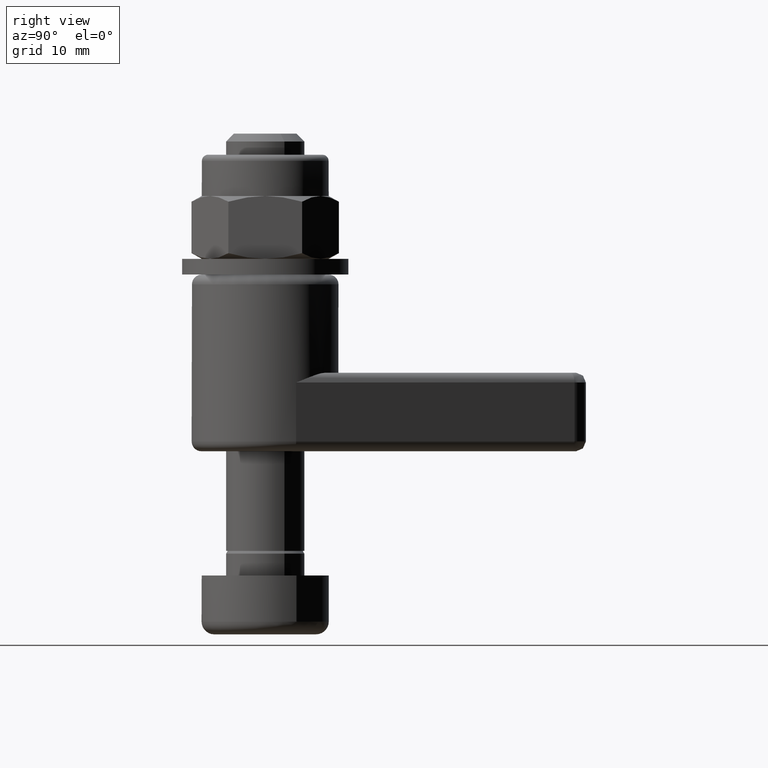
[diagram: clean part render]
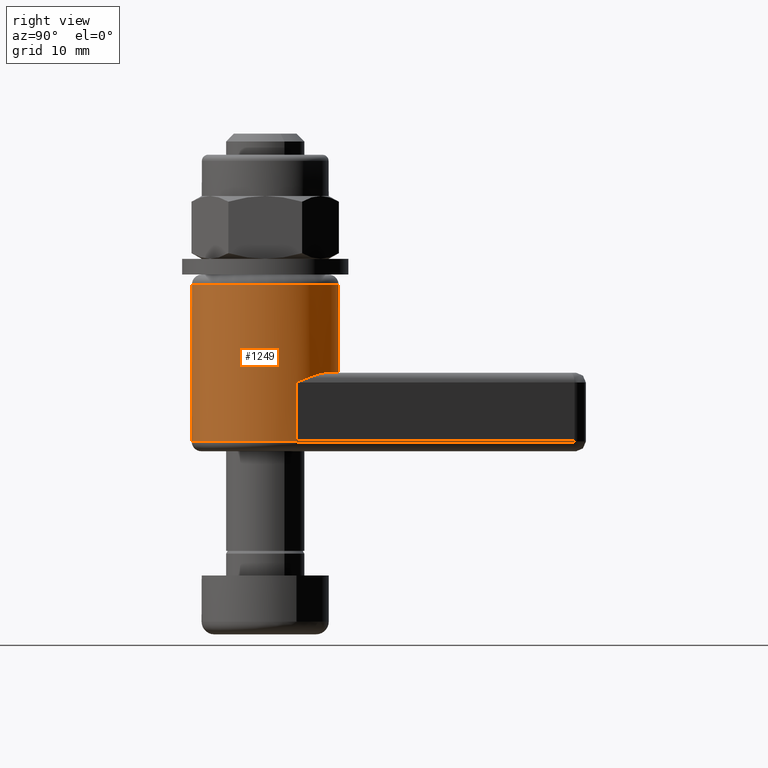
[diagram: same view with one face highlighted and labeled with its STEP entity id]
A machine part, right view. The second image highlights one B-rep face of the part: STEP entity #1249.
In plain terms, the highlighted cylindrical surface (bore or boss wall) has radius 7.5 mm, axis along (0, -0, 1).
Its self-contained STEP definition (entity closure, byte-faithful):
#29=B_SPLINE_CURVE_WITH_KNOTS('',3,(#2319,#2320,#2321,#2322,#2323,#2324),
 .UNSPECIFIED.,.F.,.F.,(4,2,4),(0.804886163711708,0.998937520207668,1.19298887670363),
 .UNSPECIFIED.);
#30=B_SPLINE_CURVE_WITH_KNOTS('',3,(#2329,#2330,#2331,#2332,#2333,#2334,
#2335,#2336),.UNSPECIFIED.,.F.,.F.,(4,2,2,4),(0.,0.104337578835759,0.208675157671517,
0.38241584925576),.UNSPECIFIED.);
#138=LINE('',#2315,#203);
#139=LINE('',#2325,#204);
#140=LINE('',#2327,#205);
#203=VECTOR('',#1836,7.5);
#204=VECTOR('',#1839,10.);
#205=VECTOR('',#1840,10.);
#241=CYLINDRICAL_SURFACE('',#1513,7.5);
#316=FACE_OUTER_BOUND('',#401,.T.);
#401=EDGE_LOOP('',(#1042,#1043,#1044,#1045,#1046,#1047,#1048,#1049,#1050,
#1051,#1052));
#485=CIRCLE('',#1510,7.5);
#487=CIRCLE('',#1514,7.5);
#488=CIRCLE('',#1515,7.5);
#489=CIRCLE('',#1516,7.5);
#490=CIRCLE('',#1517,7.5);
#587=VERTEX_POINT('',#2296);
#589=VERTEX_POINT('',#2302);
#590=VERTEX_POINT('',#2310);
#591=VERTEX_POINT('',#2311);
#592=VERTEX_POINT('',#2314);
#593=VERTEX_POINT('',#2316);
#594=VERTEX_POINT('',#2318);
#595=VERTEX_POINT('',#2326);
#596=VERTEX_POINT('',#2328);
#745=EDGE_CURVE('',#589,#587,#485,.T.);
#749=EDGE_CURVE('',#590,#591,#487,.T.);
#750=EDGE_CURVE('',#591,#590,#488,.T.);
#751=EDGE_CURVE('',#591,#592,#138,.T.);
#752=EDGE_CURVE('',#593,#592,#489,.T.);
#753=EDGE_CURVE('',#594,#593,#29,.F.);
#754=EDGE_CURVE('',#587,#594,#139,.T.);
#755=EDGE_CURVE('',#589,#595,#140,.T.);
#756=EDGE_CURVE('',#596,#595,#30,.F.);
#757=EDGE_CURVE('',#592,#596,#490,.T.);
#1042=ORIENTED_EDGE('',*,*,#749,.F.);
#1043=ORIENTED_EDGE('',*,*,#750,.F.);
#1044=ORIENTED_EDGE('',*,*,#751,.T.);
#1045=ORIENTED_EDGE('',*,*,#752,.F.);
#1046=ORIENTED_EDGE('',*,*,#753,.F.);
#1047=ORIENTED_EDGE('',*,*,#754,.F.);
#1048=ORIENTED_EDGE('',*,*,#745,.F.);
#1049=ORIENTED_EDGE('',*,*,#755,.T.);
#1050=ORIENTED_EDGE('',*,*,#756,.F.);
#1051=ORIENTED_EDGE('',*,*,#757,.F.);
#1052=ORIENTED_EDGE('',*,*,#751,.F.);
#1249=ADVANCED_FACE('',(#316),#241,.T.);
#1510=AXIS2_PLACEMENT_3D('',#2304,#1822,#1823);
#1513=AXIS2_PLACEMENT_3D('',#2309,#1830,#1831);
#1514=AXIS2_PLACEMENT_3D('',#2312,#1832,#1833);
#1515=AXIS2_PLACEMENT_3D('',#2313,#1834,#1835);
#1516=AXIS2_PLACEMENT_3D('',#2317,#1837,#1838);
#1517=AXIS2_PLACEMENT_3D('',#2337,#1841,#1842);
#1822=DIRECTION('center_axis',(0.,0.,-1.));
#1823=DIRECTION('ref_axis',(0.944017111442194,-0.329896488772368,0.));
#1830=DIRECTION('center_axis',(0.,0.,1.));
#1831=DIRECTION('ref_axis',(1.,0.,0.));
#1832=DIRECTION('center_axis',(0.,0.,1.));
#1833=DIRECTION('ref_axis',(-1.,0.,0.));
#1834=DIRECTION('center_axis',(0.,0.,1.));
#1835=DIRECTION('ref_axis',(-1.,0.,0.));
#1836=DIRECTION('',(0.,0.,-1.));
#1837=DIRECTION('center_axis',(0.,0.,-1.));
#1838=DIRECTION('ref_axis',(-1.,0.,0.));
#1839=DIRECTION('',(0.,0.,1.));
#1840=DIRECTION('',(0.,0.,1.));
#1841=DIRECTION('center_axis',(0.,0.,-1.));
#1842=DIRECTION('ref_axis',(-1.,0.,0.));
#2296=CARTESIAN_POINT('',(0.,-7.5,1.));
#2302=CARTESIAN_POINT('',(4.67141895608717,5.86752460043496,1.));
#2304=CARTESIAN_POINT('Origin',(0.,0.,1.));
#2309=CARTESIAN_POINT('Origin',(0.,0.,0.));
#2310=CARTESIAN_POINT('',(7.5,9.18485099360515E-16,17.));
#2311=CARTESIAN_POINT('',(-7.5,-9.18485099360515E-16,17.));
#2312=CARTESIAN_POINT('Origin',(0.,0.,17.));
#2313=CARTESIAN_POINT('Origin',(0.,0.,17.));
#2314=CARTESIAN_POINT('',(-7.5,-9.18485099360515E-16,8.));
#2315=CARTESIAN_POINT('',(-7.5,-9.18485099360515E-16,0.));
#2316=CARTESIAN_POINT('',(-3.74165738677394,-6.5,8.));
#2317=CARTESIAN_POINT('Origin',(0.,0.,8.));
#2318=CARTESIAN_POINT('',(0.,-7.5,7.));
#2319=CARTESIAN_POINT('Ctrl Pts',(-3.74165738677394,-6.5,8.));
#2320=CARTESIAN_POINT('Ctrl Pts',(-3.18106457911894,-6.82269941842072,8.));
#2321=CARTESIAN_POINT('Ctrl Pts',(-2.55464133039758,-7.08285045782554,7.8523600969935));
#2322=CARTESIAN_POINT('Ctrl Pts',(-1.26753218973588,-7.42201043727373,7.46498333232107));
#2323=CARTESIAN_POINT('Ctrl Pts',(-0.60759836577897,-7.5,7.22186355389361));
#2324=CARTESIAN_POINT('Ctrl Pts',(0.,-7.5,7.));
#2325=CARTESIAN_POINT('',(0.,-7.5,0.));
#2326=CARTESIAN_POINT('',(4.67141895608717,5.86752460043496,7.));
#2327=CARTESIAN_POINT('',(4.67141895608717,5.86752460043496,0.));
#2328=CARTESIAN_POINT('',(1.12132752683618,7.41570121954488,8.));
#2329=CARTESIAN_POINT('Ctrl Pts',(4.67141895608717,5.86752460043496,7.));
#2330=CARTESIAN_POINT('Ctrl Pts',(4.41583456664662,6.07100764362903,7.11929164765018));
#2331=CARTESIAN_POINT('Ctrl Pts',(4.12149962374498,6.276377972154,7.2503224789759));
#2332=CARTESIAN_POINT('Ctrl Pts',(3.50120832033269,6.6423806214298,7.4981515782711));
#2333=CARTESIAN_POINT('Ctrl Pts',(3.17503458781319,6.8030515553815,7.61434834651026));
#2334=CARTESIAN_POINT('Ctrl Pts',(2.34944526259534,7.14434373159831,7.8615661310273));
#2335=CARTESIAN_POINT('Ctrl Pts',(1.69395377504321,7.32911445509823,8.));
#2336=CARTESIAN_POINT('Ctrl Pts',(1.12132752683618,7.41570121954488,8.));
#2337=CARTESIAN_POINT('Origin',(0.,0.,8.));